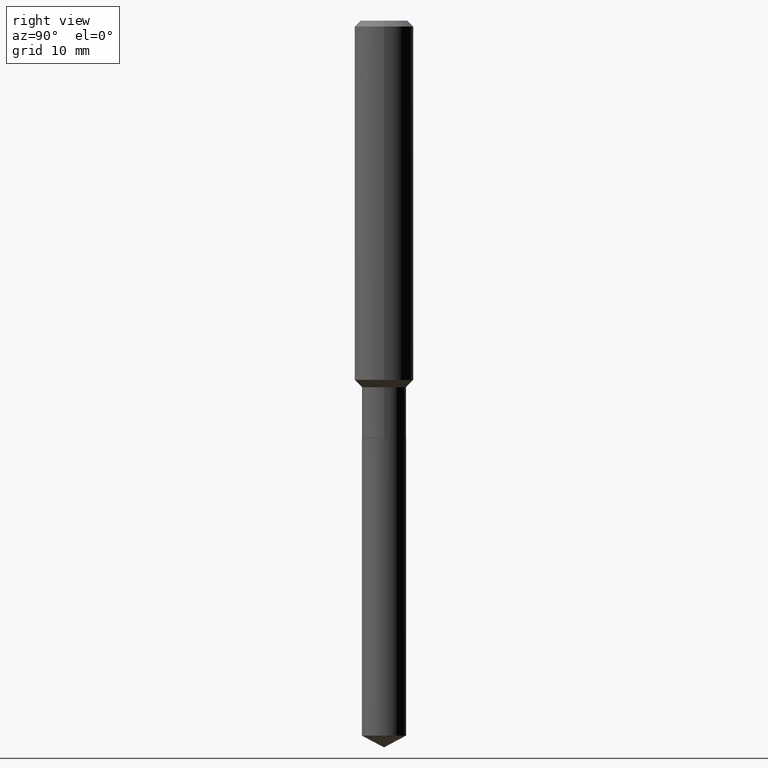
[diagram: clean part render]
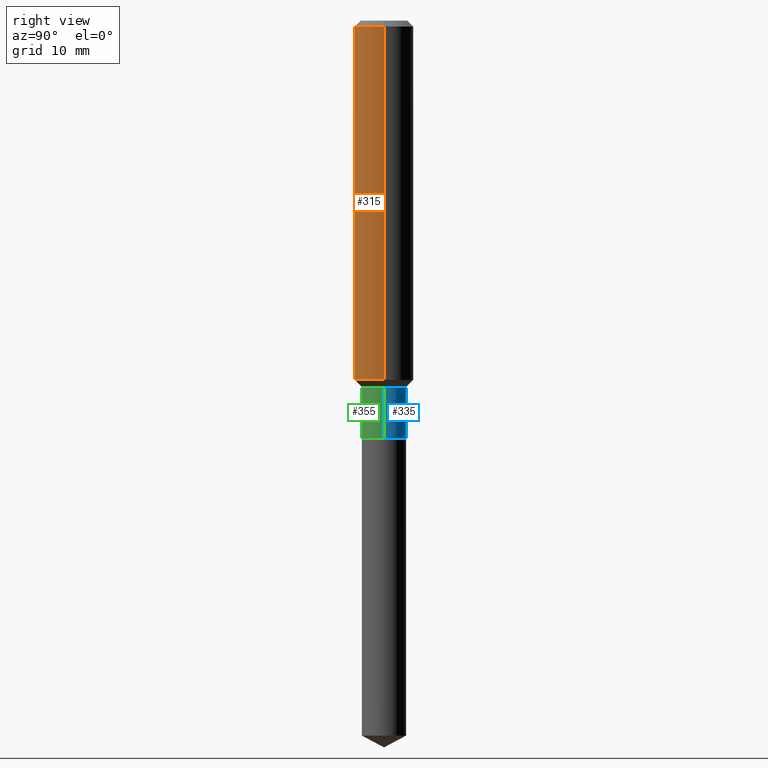
[diagram: same view with three faces highlighted in distinct colors, each labeled with its STEP entity id]
A machine part, right view with three faces highlighted in distinct colors.
Their STEP definitions:

[orange] entity #315 — the highlighted cylindrical surface (edge-blend (fillet) strip) has radius 2.9997 mm, axis along (-0, 0, 1).
#7 = LINE ( 'NONE', #49, #311 ) ;
#8 = CYLINDRICAL_SURFACE ( 'NONE', #333, 0.1181000000000000799 ) ;
#21 = VECTOR ( 'NONE', #34, 39.37007874015748143 ) ;
#26 = CARTESIAN_POINT ( 'NONE',  ( 0.1180999999999999966, -9.071566814582237199E-16, -0.02362000000000014088 ) ) ;
#34 = DIRECTION ( 'NONE',  ( -2.445468806185136877E-29, 3.491481338843145188E-15, 1.000000000000000000 ) ) ;
#49 = CARTESIAN_POINT ( 'NONE',  ( -0.1181000000000000799, 8.391509709326788873E-16, -5.809262341591047988E-30 ) ) ;
#60 = LINE ( 'NONE', #218, #21 ) ;
#83 = EDGE_LOOP ( 'NONE', ( #162, #95, #247, #209 ) ) ;
#94 = DIRECTION ( 'NONE',  ( -2.445468806185136597E-29, 3.491481338843145583E-15, 1.000000000000000000 ) ) ;
#95 = ORIENTED_EDGE ( 'NONE', *, *, #298, .T. ) ;
#150 = DIRECTION ( 'NONE',  ( 1.000000000000000000, -6.982962677686266711E-15, 4.876176775795936353E-29 ) ) ;
#162 = ORIENTED_EDGE ( 'NONE', *, *, #363, .F. ) ;
#171 = CARTESIAN_POINT ( 'NONE',  ( -0.1181000000000001632, -4.188582157001450874E-15, -1.440000000000000169 ) ) ;
#192 = AXIS2_PLACEMENT_3D ( 'NONE', #212, #371, #407 ) ;
#209 = ORIENTED_EDGE ( 'NONE', *, *, #302, .F. ) ;
#211 = AXIS2_PLACEMENT_3D ( 'NONE', #435, #94, #249 ) ;
#212 = CARTESIAN_POINT ( 'NONE',  ( 5.776197320209327532E-31, -8.246878922347559293E-17, -0.02362000000000014088 ) ) ;
#218 = CARTESIAN_POINT ( 'NONE',  ( 0.1181000000000000799, -8.246878922347486570E-16, 5.758764772215004644E-30 ) ) ;
#247 = ORIENTED_EDGE ( 'NONE', *, *, #271, .T. ) ;
#249 = DIRECTION ( 'NONE',  ( 1.000000000000000000, -6.982962677686263555E-15, 0.000000000000000000 ) ) ;
#271 = EDGE_CURVE ( 'NONE', #466, #478, #60, .T. ) ;
#272 = CIRCLE ( 'NONE', #192, 0.1180999999999999966 ) ;
#298 = EDGE_CURVE ( 'NONE', #480, #466, #378, .T. ) ;
#302 = EDGE_CURVE ( 'NONE', #401, #478, #272, .T. ) ;
#311 = VECTOR ( 'NONE', #469, 39.37007874015748143 ) ;
#315 = ADVANCED_FACE ( 'NONE', ( #416 ), #8, .T. ) ;
#320 = CARTESIAN_POINT ( 'NONE',  ( 0.1181000000000001632, -5.852421020168879700E-15, -1.440000000000000169 ) ) ;
#325 = CARTESIAN_POINT ( 'NONE',  ( -0.1180999999999999966, -1.715949987646123475E-15, -0.02362000000000014088 ) ) ;
#333 = AXIS2_PLACEMENT_3D ( 'NONE', #453, #379, #150 ) ;
#363 = EDGE_CURVE ( 'NONE', #480, #401, #7, .T. ) ;
#371 = DIRECTION ( 'NONE',  ( -2.445468806185136597E-29, 3.491481338843145583E-15, 1.000000000000000000 ) ) ;
#378 = CIRCLE ( 'NONE', #211, 0.1181000000000001632 ) ;
#379 = DIRECTION ( 'NONE',  ( -2.445468806185136597E-29, 3.491481338843145583E-15, 1.000000000000000000 ) ) ;
#401 = VERTEX_POINT ( 'NONE', #325 ) ;
#407 = DIRECTION ( 'NONE',  ( 1.000000000000000000, -6.982962677686266711E-15, 0.000000000000000000 ) ) ;
#416 = FACE_OUTER_BOUND ( 'NONE', #83, .T. ) ;
#435 = CARTESIAN_POINT ( 'NONE',  ( 3.521475080906597305E-29, -5.027733127934130649E-15, -1.440000000000000169 ) ) ;
#453 = CARTESIAN_POINT ( 'NONE',  ( 0.000000000000000000, 0.000000000000000000, 0.000000000000000000 ) ) ;
#466 = VERTEX_POINT ( 'NONE', #320 ) ;
#469 = DIRECTION ( 'NONE',  ( -2.445468806185136877E-29, 3.491481338843145188E-15, 1.000000000000000000 ) ) ;
#478 = VERTEX_POINT ( 'NONE', #26 ) ;
#480 = VERTEX_POINT ( 'NONE', #171 ) ;

[blue] entity #335 — the highlighted cylindrical surface (edge-blend (fillet) strip) has radius 2.2504 mm, axis along (-0, 0, 1).
#6 = CIRCLE ( 'NONE', #28, 0.08859999999999999820 ) ;
#28 = AXIS2_PLACEMENT_3D ( 'NONE', #403, #63, #440 ) ;
#31 = EDGE_LOOP ( 'NONE', ( #306, #213, #102, #408 ) ) ;
#55 = EDGE_CURVE ( 'NONE', #105, #329, #463, .T. ) ;
#59 = CARTESIAN_POINT ( 'NONE',  ( -0.08859999999999998432, 6.295408638834486533E-16, -4.358176489965845566E-30 ) ) ;
#63 = DIRECTION ( 'NONE',  ( -2.445468806185136597E-29, 3.491481338843145583E-15, 1.000000000000000000 ) ) ;
#102 = ORIENTED_EDGE ( 'NONE', *, *, #55, .F. ) ;
#105 = VERTEX_POINT ( 'NONE', #337 ) ;
#126 = VECTOR ( 'NONE', #207, 39.37007874015748143 ) ;
#135 = VERTEX_POINT ( 'NONE', #208 ) ;
#180 = CARTESIAN_POINT ( 'NONE',  ( 0.08859999999999999820, -6.459240476859818007E-15, -1.672800000000000287 ) ) ;
#182 = VECTOR ( 'NONE', #460, 39.37007874015748143 ) ;
#188 = DIRECTION ( 'NONE',  ( 1.000000000000000000, -6.982962677686265922E-15, 4.876176775795935232E-29 ) ) ;
#191 = CARTESIAN_POINT ( 'NONE',  ( 3.593616410689059139E-29, -5.130731827430003304E-15, -1.469500000000000250 ) ) ;
#193 = DIRECTION ( 'NONE',  ( -2.445468806185136597E-29, 3.491481338843145583E-15, 1.000000000000000000 ) ) ;
#195 = EDGE_CURVE ( 'NONE', #487, #135, #6, .T. ) ;
#207 = DIRECTION ( 'NONE',  ( -2.445468806185136877E-29, 3.491481338843145188E-15, 1.000000000000000000 ) ) ;
#208 = CARTESIAN_POINT ( 'NONE',  ( -0.08859999999999999820, -4.856100041639960723E-15, -1.672800000000000287 ) ) ;
#213 = ORIENTED_EDGE ( 'NONE', *, *, #475, .T. ) ;
#219 = DIRECTION ( 'NONE',  ( 1.000000000000000000, -6.982962677686270655E-15, 0.000000000000000000 ) ) ;
#234 = DIRECTION ( 'NONE',  ( -2.445468806185136597E-29, 3.491481338843145583E-15, 1.000000000000000000 ) ) ;
#264 = CARTESIAN_POINT ( 'NONE',  ( -0.08859999999999998432, -4.856100041639960723E-15, -1.469500000000000250 ) ) ;
#276 = CARTESIAN_POINT ( 'NONE',  ( 0.000000000000000000, 0.000000000000000000, 0.000000000000000000 ) ) ;
#306 = ORIENTED_EDGE ( 'NONE', *, *, #195, .T. ) ;
#308 = FACE_OUTER_BOUND ( 'NONE', #31, .T. ) ;
#329 = VERTEX_POINT ( 'NONE', #264 ) ;
#335 = ADVANCED_FACE ( 'NONE', ( #308 ), #465, .T. ) ;
#337 = CARTESIAN_POINT ( 'NONE',  ( 0.08859999999999998432, -5.749422320673006256E-15, -1.469500000000000250 ) ) ;
#344 = CARTESIAN_POINT ( 'NONE',  ( 0.08859999999999998432, -6.186904932430030515E-16, 4.320292623355198064E-30 ) ) ;
#349 = EDGE_CURVE ( 'NONE', #487, #105, #425, .T. ) ;
#398 = LINE ( 'NONE', #59, #126 ) ;
#403 = CARTESIAN_POINT ( 'NONE',  ( 4.090780218986497603E-29, -5.840549983616814265E-15, -1.672800000000000287 ) ) ;
#406 = AXIS2_PLACEMENT_3D ( 'NONE', #276, #234, #188 ) ;
#408 = ORIENTED_EDGE ( 'NONE', *, *, #349, .F. ) ;
#425 = LINE ( 'NONE', #344, #182 ) ;
#440 = DIRECTION ( 'NONE',  ( 1.000000000000000000, -6.982962677686269077E-15, 0.000000000000000000 ) ) ;
#441 = AXIS2_PLACEMENT_3D ( 'NONE', #191, #193, #219 ) ;
#460 = DIRECTION ( 'NONE',  ( -2.445468806185136877E-29, 3.491481338843145188E-15, 1.000000000000000000 ) ) ;
#463 = CIRCLE ( 'NONE', #441, 0.08859999999999998432 ) ;
#465 = CYLINDRICAL_SURFACE ( 'NONE', #406, 0.08859999999999998432 ) ;
#475 = EDGE_CURVE ( 'NONE', #135, #329, #398, .T. ) ;
#487 = VERTEX_POINT ( 'NONE', #180 ) ;

[green] entity #355 — the highlighted cylindrical surface (edge-blend (fillet) strip) has radius 2.2504 mm, axis along (-0, 0, 1).
#9 = CARTESIAN_POINT ( 'NONE',  ( 4.090780218986497603E-29, -5.840549983616814265E-15, -1.672800000000000287 ) ) ;
#46 = DIRECTION ( 'NONE',  ( -2.445468806185136597E-29, 3.491481338843145583E-15, 1.000000000000000000 ) ) ;
#59 = CARTESIAN_POINT ( 'NONE',  ( -0.08859999999999998432, 6.295408638834486533E-16, -4.358176489965845566E-30 ) ) ;
#65 = ORIENTED_EDGE ( 'NONE', *, *, #86, .T. ) ;
#86 = EDGE_CURVE ( 'NONE', #135, #487, #377, .T. ) ;
#92 = ORIENTED_EDGE ( 'NONE', *, *, #349, .T. ) ;
#105 = VERTEX_POINT ( 'NONE', #337 ) ;
#126 = VECTOR ( 'NONE', #207, 39.37007874015748143 ) ;
#135 = VERTEX_POINT ( 'NONE', #208 ) ;
#156 = ORIENTED_EDGE ( 'NONE', *, *, #274, .F. ) ;
#177 = EDGE_LOOP ( 'NONE', ( #367, #65, #92, #156 ) ) ;
#180 = CARTESIAN_POINT ( 'NONE',  ( 0.08859999999999999820, -6.459240476859818007E-15, -1.672800000000000287 ) ) ;
#182 = VECTOR ( 'NONE', #460, 39.37007874015748143 ) ;
#207 = DIRECTION ( 'NONE',  ( -2.445468806185136877E-29, 3.491481338843145188E-15, 1.000000000000000000 ) ) ;
#208 = CARTESIAN_POINT ( 'NONE',  ( -0.08859999999999999820, -4.856100041639960723E-15, -1.672800000000000287 ) ) ;
#214 = DIRECTION ( 'NONE',  ( 1.000000000000000000, -6.982962677686270655E-15, 0.000000000000000000 ) ) ;
#226 = CYLINDRICAL_SURFACE ( 'NONE', #241, 0.08859999999999998432 ) ;
#241 = AXIS2_PLACEMENT_3D ( 'NONE', #267, #46, #384 ) ;
#259 = CARTESIAN_POINT ( 'NONE',  ( 3.593616410689059139E-29, -5.130731827430003304E-15, -1.469500000000000250 ) ) ;
#260 = DIRECTION ( 'NONE',  ( -2.445468806185136597E-29, 3.491481338843145583E-15, 1.000000000000000000 ) ) ;
#264 = CARTESIAN_POINT ( 'NONE',  ( -0.08859999999999998432, -4.856100041639960723E-15, -1.469500000000000250 ) ) ;
#267 = CARTESIAN_POINT ( 'NONE',  ( 0.000000000000000000, 0.000000000000000000, 0.000000000000000000 ) ) ;
#274 = EDGE_CURVE ( 'NONE', #329, #105, #456, .T. ) ;
#287 = DIRECTION ( 'NONE',  ( -2.445468806185136597E-29, 3.491481338843145583E-15, 1.000000000000000000 ) ) ;
#329 = VERTEX_POINT ( 'NONE', #264 ) ;
#337 = CARTESIAN_POINT ( 'NONE',  ( 0.08859999999999998432, -5.749422320673006256E-15, -1.469500000000000250 ) ) ;
#344 = CARTESIAN_POINT ( 'NONE',  ( 0.08859999999999998432, -6.186904932430030515E-16, 4.320292623355198064E-30 ) ) ;
#349 = EDGE_CURVE ( 'NONE', #487, #105, #425, .T. ) ;
#355 = ADVANCED_FACE ( 'NONE', ( #391 ), #226, .T. ) ;
#367 = ORIENTED_EDGE ( 'NONE', *, *, #475, .F. ) ;
#377 = CIRCLE ( 'NONE', #431, 0.08859999999999999820 ) ;
#384 = DIRECTION ( 'NONE',  ( 1.000000000000000000, -6.982962677686265922E-15, 4.876176775795935232E-29 ) ) ;
#391 = FACE_OUTER_BOUND ( 'NONE', #177, .T. ) ;
#398 = LINE ( 'NONE', #59, #126 ) ;
#413 = DIRECTION ( 'NONE',  ( 1.000000000000000000, -6.982962677686269077E-15, 0.000000000000000000 ) ) ;
#425 = LINE ( 'NONE', #344, #182 ) ;
#431 = AXIS2_PLACEMENT_3D ( 'NONE', #9, #260, #413 ) ;
#432 = AXIS2_PLACEMENT_3D ( 'NONE', #259, #287, #214 ) ;
#456 = CIRCLE ( 'NONE', #432, 0.08859999999999998432 ) ;
#460 = DIRECTION ( 'NONE',  ( -2.445468806185136877E-29, 3.491481338843145188E-15, 1.000000000000000000 ) ) ;
#475 = EDGE_CURVE ( 'NONE', #135, #329, #398, .T. ) ;
#487 = VERTEX_POINT ( 'NONE', #180 ) ;